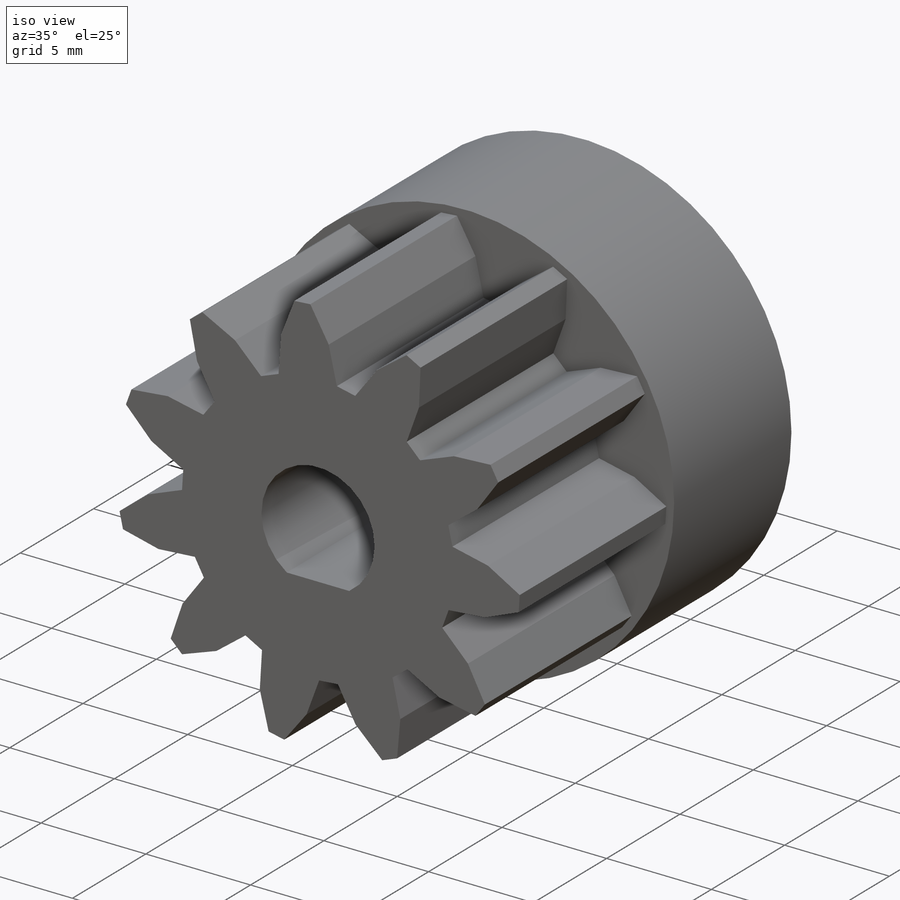
[diagram: iso view]
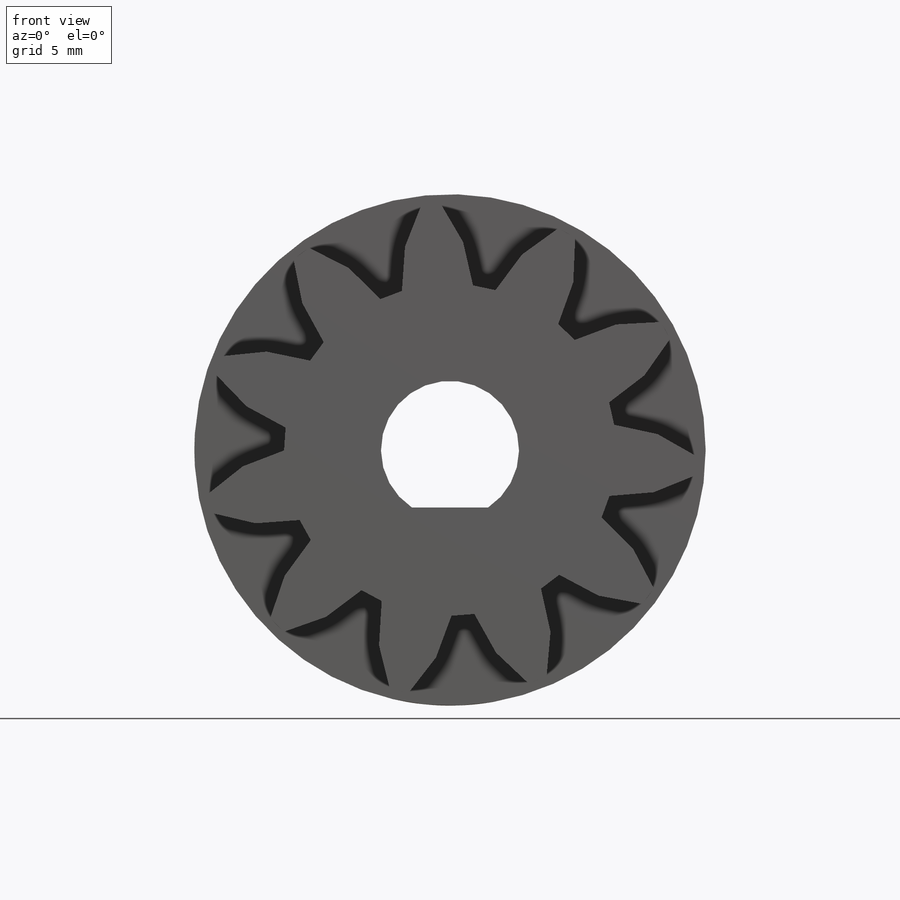
[diagram: front view]
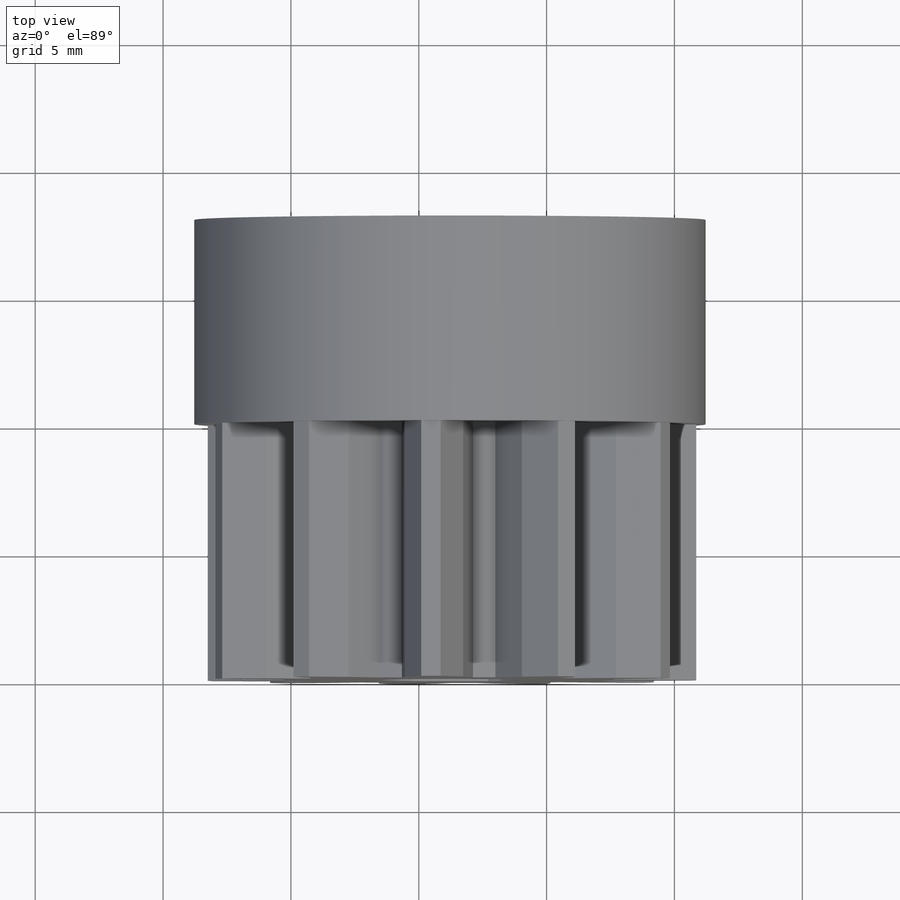
[diagram: top view]
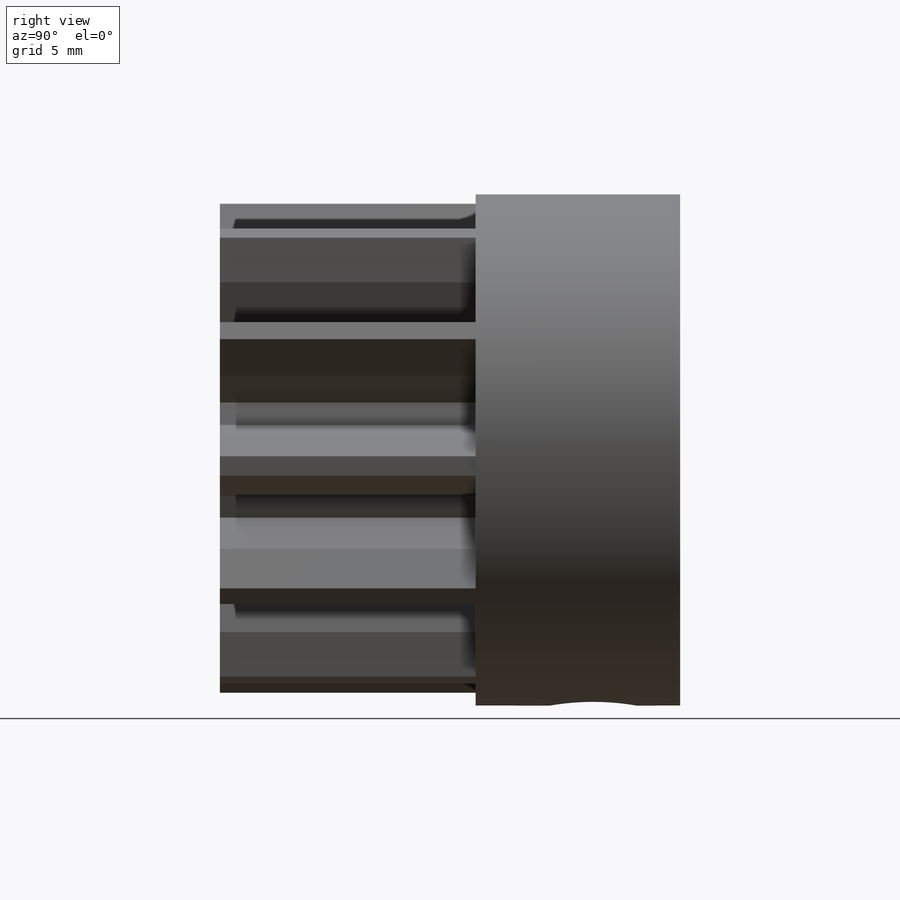
[diagram: right view]
SOLIDWORKS PART (.sldprt)
format: sldprt  version: not decoded by parser v0  size: 363,008 bytes
history: native  units: mm
features: sketch x4, extrude x2, cut_extrude x2, material x1 (+11 scaffold rows collapsed)
feature tree (20):
  scaffold x11  (default folders/planes/origin — collapsed)
  material  "Material <not specified>"
  sketch  "Sketch1"  dims[D1=~3.028073mm]
  extrude  "Boss-Extrude3"  Depth=10mm
  sketch  "Sketch3"
  extrude  "Boss-Extrude4"  Depth=8mm
  sketch  "Sketch7"  dims[c1.D1=~0.719009mm c1.D2=~1.807264mm c2.D1=3.4mm]
  cut_extrude  "Cut-Extrude2"  Depth=2mm
  sketch  "Sketch8"  dims[D1=2.0mm D2=0.5mm D3=0.25mm]
  cut_extrude  "Cut-Extrude3"  Depth=6.8mm
decode coverage: 7 of 8 modeling features carry decoded parameters
note: ~ marks probable driven/reference dimensions
note: suppression state not decoded; provenance and decode notes live in map.json
